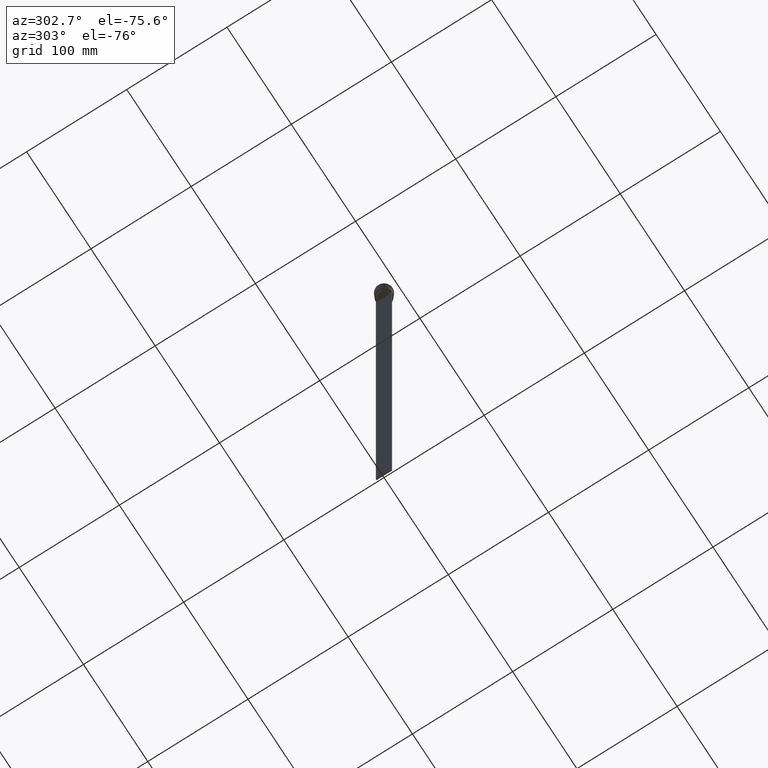
[diagram: clean part render]
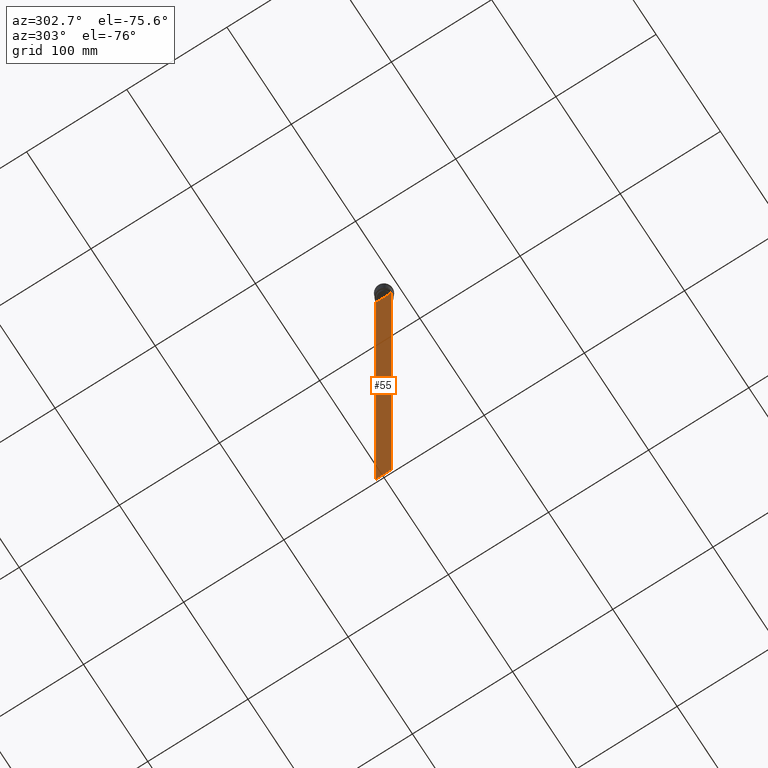
[diagram: same view with one face highlighted and labeled with its STEP entity id]
A machine part, auxiliary view. The second image highlights one B-rep face of the part: STEP entity #55.
In plain terms, the highlighted planar face has unit normal (-1, 0, 0).
Its self-contained STEP definition (entity closure, byte-faithful):
#34 = EDGE_CURVE ( 'NONE', #941, #1283, #131, .T. ) ;
#55 = ADVANCED_FACE ( 'NONE', ( #2188 ), #529, .T. ) ;
#131 = B_SPLINE_CURVE_WITH_KNOTS ( 'NONE', 3,
 ( #517, #1240, #158, #676 ),
 .UNSPECIFIED., .F., .F.,
 ( 4, 4 ),
 ( 0.01172465562756038263, 0.01243276816391822651 ),
 .UNSPECIFIED. ) ;
#155 = EDGE_CURVE ( 'NONE', #2274, #941, #1684, .T. ) ;
#158 = CARTESIAN_POINT ( 'NONE',  ( -0.4999999999999998890, 6.547597841304911626, -14.33335192459222718 ) ) ;
#163 = LINE ( 'NONE', #532, #965 ) ;
#203 = CARTESIAN_POINT ( 'NONE',  ( -0.4999999999999998890, -6.380438856379708312, -17.00000000000000000 ) ) ;
#213 = VERTEX_POINT ( 'NONE', #1465 ) ;
#251 = VERTEX_POINT ( 'NONE', #993 ) ;
#252 = CARTESIAN_POINT ( 'NONE',  ( -0.4999999999999998890, -6.380438856379708312, -14.50000000000000000 ) ) ;
#329 = LINE ( 'NONE', #1054, #1419 ) ;
#331 = VERTEX_POINT ( 'NONE', #203 ) ;
#345 = VECTOR ( 'NONE', #1537, 1000.000000000000000 ) ;
#376 = CARTESIAN_POINT ( 'NONE',  ( -0.4999999999999998890, 6.881860213634098500, -14.00000000000000178 ) ) ;
#449 = EDGE_CURVE ( 'NONE', #684, #213, #681, .T. ) ;
#459 = DIRECTION ( 'NONE',  ( 0.000000000000000000, 0.000000000000000000, -1.000000000000000000 ) ) ;
#479 = EDGE_CURVE ( 'NONE', #1283, #1192, #1759, .T. ) ;
#502 = CARTESIAN_POINT ( 'NONE',  ( -0.4999999999999998890, 6.380438856379708312, -14.50000000000000000 ) ) ;
#517 = CARTESIAN_POINT ( 'NONE',  ( -0.4999999999999998890, 6.881860213634098500, -14.00000000000000178 ) ) ;
#528 = ORIENTED_EDGE ( 'NONE', *, *, #847, .F. ) ;
#529 = PLANE ( 'NONE',  #1961 ) ;
#532 = CARTESIAN_POINT ( 'NONE',  ( -0.4999999999999998890, -7.749999999999999112, -614.0000000000000000 ) ) ;
#600 = DIRECTION ( 'NONE',  ( -1.000000000000000000, 0.000000000000000000, 0.000000000000000000 ) ) ;
#613 = CARTESIAN_POINT ( 'NONE',  ( -0.4999999999999998890, -6.714736947305992132, -14.16668390685738999 ) ) ;
#632 = CARTESIAN_POINT ( 'NONE',  ( -0.4999999999999998890, -6.547597841511246131, -14.33335192438652328 ) ) ;
#676 = CARTESIAN_POINT ( 'NONE',  ( -0.4999999999999998890, 6.380438856379708312, -14.50000000000000000 ) ) ;
#681 = LINE ( 'NONE', #2320, #1538 ) ;
#684 = VERTEX_POINT ( 'NONE', #939 ) ;
#798 = ORIENTED_EDGE ( 'NONE', *, *, #1575, .F. ) ;
#827 = EDGE_CURVE ( 'NONE', #213, #251, #163, .T. ) ;
#847 = EDGE_CURVE ( 'NONE', #1721, #684, #915, .T. ) ;
#866 = ORIENTED_EDGE ( 'NONE', *, *, #1585, .F. ) ;
#897 = DIRECTION ( 'NONE',  ( 0.000000000000000000, 1.000000000000000000, 0.000000000000000000 ) ) ;
#915 = LINE ( 'NONE', #2229, #1430 ) ;
#927 = CARTESIAN_POINT ( 'NONE',  ( -0.4999999999999998890, 6.399999999999999467, -17.00000000000000000 ) ) ;
#937 = EDGE_LOOP ( 'NONE', ( #1075, #1184, #2072, #2389, #1142, #528, #798, #1153, #866, #1727 ) ) ;
#939 = CARTESIAN_POINT ( 'NONE',  ( -0.4999999999999998890, -7.749999999999999112, -14.00000000000000178 ) ) ;
#941 = VERTEX_POINT ( 'NONE', #376 ) ;
#961 = VECTOR ( 'NONE', #1452, 1000.000000000000000 ) ;
#962 = VERTEX_POINT ( 'NONE', #252 ) ;
#965 = VECTOR ( 'NONE', #897, 1000.000000000000000 ) ;
#984 = VECTOR ( 'NONE', #2258, 1000.000000000000000 ) ;
#993 = CARTESIAN_POINT ( 'NONE',  ( -0.4999999999999998890, 7.750000000000002665, -614.0000000000000000 ) ) ;
#1009 = CARTESIAN_POINT ( 'NONE',  ( -0.4999999999999998890, 6.380438856379708312, -17.00000000000000000 ) ) ;
#1054 = CARTESIAN_POINT ( 'NONE',  ( -0.4999999999999998890, -6.380438856379708312, 0.000000000000000000 ) ) ;
#1075 = ORIENTED_EDGE ( 'NONE', *, *, #34, .F. ) ;
#1083 = CARTESIAN_POINT ( 'NONE',  ( -0.4999999999999998890, -7.749999999999999112, -14.00000000000000178 ) ) ;
#1091 = LINE ( 'NONE', #927, #984 ) ;
#1142 = ORIENTED_EDGE ( 'NONE', *, *, #449, .F. ) ;
#1153 = ORIENTED_EDGE ( 'NONE', *, *, #2134, .F. ) ;
#1184 = ORIENTED_EDGE ( 'NONE', *, *, #155, .F. ) ;
#1192 = VERTEX_POINT ( 'NONE', #1009 ) ;
#1240 = CARTESIAN_POINT ( 'NONE',  ( -0.4999999999999998890, 6.714736947114692711, -14.16668390704818847 ) ) ;
#1252 = CARTESIAN_POINT ( 'NONE',  ( -0.4999999999999998890, -7.749999999999999112, 1.532224567009066840 ) ) ;
#1283 = VERTEX_POINT ( 'NONE', #502 ) ;
#1318 = CARTESIAN_POINT ( 'NONE',  ( -0.4999999999999998890, -6.881860213634098500, -14.00000000000000178 ) ) ;
#1419 = VECTOR ( 'NONE', #1799, 1000.000000000000000 ) ;
#1422 = CARTESIAN_POINT ( 'NONE',  ( -0.4999999999999998890, 6.380438856379708312, 0.000000000000000000 ) ) ;
#1430 = VECTOR ( 'NONE', #1663, 1000.000000000000000 ) ;
#1452 = DIRECTION ( 'NONE',  ( 0.000000000000000000, -1.000000000000000000, 0.000000000000000000 ) ) ;
#1465 = CARTESIAN_POINT ( 'NONE',  ( -0.4999999999999998890, -7.749999999999999112, -614.0000000000000000 ) ) ;
#1505 = DIRECTION ( 'NONE',  ( 0.000000000000000000, 0.000000000000000000, 1.000000000000000000 ) ) ;
#1537 = DIRECTION ( 'NONE',  ( 0.000000000000000000, 0.000000000000000000, -1.000000000000000000 ) ) ;
#1538 = VECTOR ( 'NONE', #1951, 1000.000000000000000 ) ;
#1575 = EDGE_CURVE ( 'NONE', #962, #1721, #1967, .T. ) ;
#1585 = EDGE_CURVE ( 'NONE', #1192, #331, #1091, .T. ) ;
#1663 = DIRECTION ( 'NONE',  ( 0.000000000000000000, -1.000000000000000000, 0.000000000000000000 ) ) ;
#1684 = LINE ( 'NONE', #1083, #961 ) ;
#1721 = VERTEX_POINT ( 'NONE', #1318 ) ;
#1722 = CARTESIAN_POINT ( 'NONE',  ( -0.4999999999999998890, -6.881860213634098500, -14.00000000000000178 ) ) ;
#1727 = ORIENTED_EDGE ( 'NONE', *, *, #479, .F. ) ;
#1745 = LINE ( 'NONE', #2083, #345 ) ;
#1759 = LINE ( 'NONE', #1422, #1775 ) ;
#1775 = VECTOR ( 'NONE', #459, 1000.000000000000000 ) ;
#1799 = DIRECTION ( 'NONE',  ( -0.000000000000000000, -0.000000000000000000, 1.000000000000000000 ) ) ;
#1872 = CARTESIAN_POINT ( 'NONE',  ( -0.4999999999999998890, 7.750000000000002665, -14.00000000000000178 ) ) ;
#1951 = DIRECTION ( 'NONE',  ( 0.000000000000000000, 0.000000000000000000, -1.000000000000000000 ) ) ;
#1961 = AXIS2_PLACEMENT_3D ( 'NONE', #1252, #600, #1505 ) ;
#1967 = B_SPLINE_CURVE_WITH_KNOTS ( 'NONE', 3,
 ( #2103, #632, #613, #1722 ),
 .UNSPECIFIED., .F., .F.,
 ( 4, 4 ),
 ( 0.02996184199614749730, 0.03067452609193703841 ),
 .UNSPECIFIED. ) ;
#2072 = ORIENTED_EDGE ( 'NONE', *, *, #2340, .T. ) ;
#2083 = CARTESIAN_POINT ( 'NONE',  ( -0.4999999999999998890, 7.750000000000002665, 1.532224567009066840 ) ) ;
#2103 = CARTESIAN_POINT ( 'NONE',  ( -0.4999999999999998890, -6.380438856379708312, -14.50000000000000000 ) ) ;
#2134 = EDGE_CURVE ( 'NONE', #331, #962, #329, .T. ) ;
#2188 = FACE_OUTER_BOUND ( 'NONE', #937, .T. ) ;
#2229 = CARTESIAN_POINT ( 'NONE',  ( -0.4999999999999998890, -7.749999999999999112, -14.00000000000000178 ) ) ;
#2258 = DIRECTION ( 'NONE',  ( 0.000000000000000000, -1.000000000000000000, 0.000000000000000000 ) ) ;
#2274 = VERTEX_POINT ( 'NONE', #1872 ) ;
#2320 = CARTESIAN_POINT ( 'NONE',  ( -0.4999999999999998890, -7.749999999999999112, 1.532224567009066840 ) ) ;
#2340 = EDGE_CURVE ( 'NONE', #2274, #251, #1745, .T. ) ;
#2389 = ORIENTED_EDGE ( 'NONE', *, *, #827, .F. ) ;